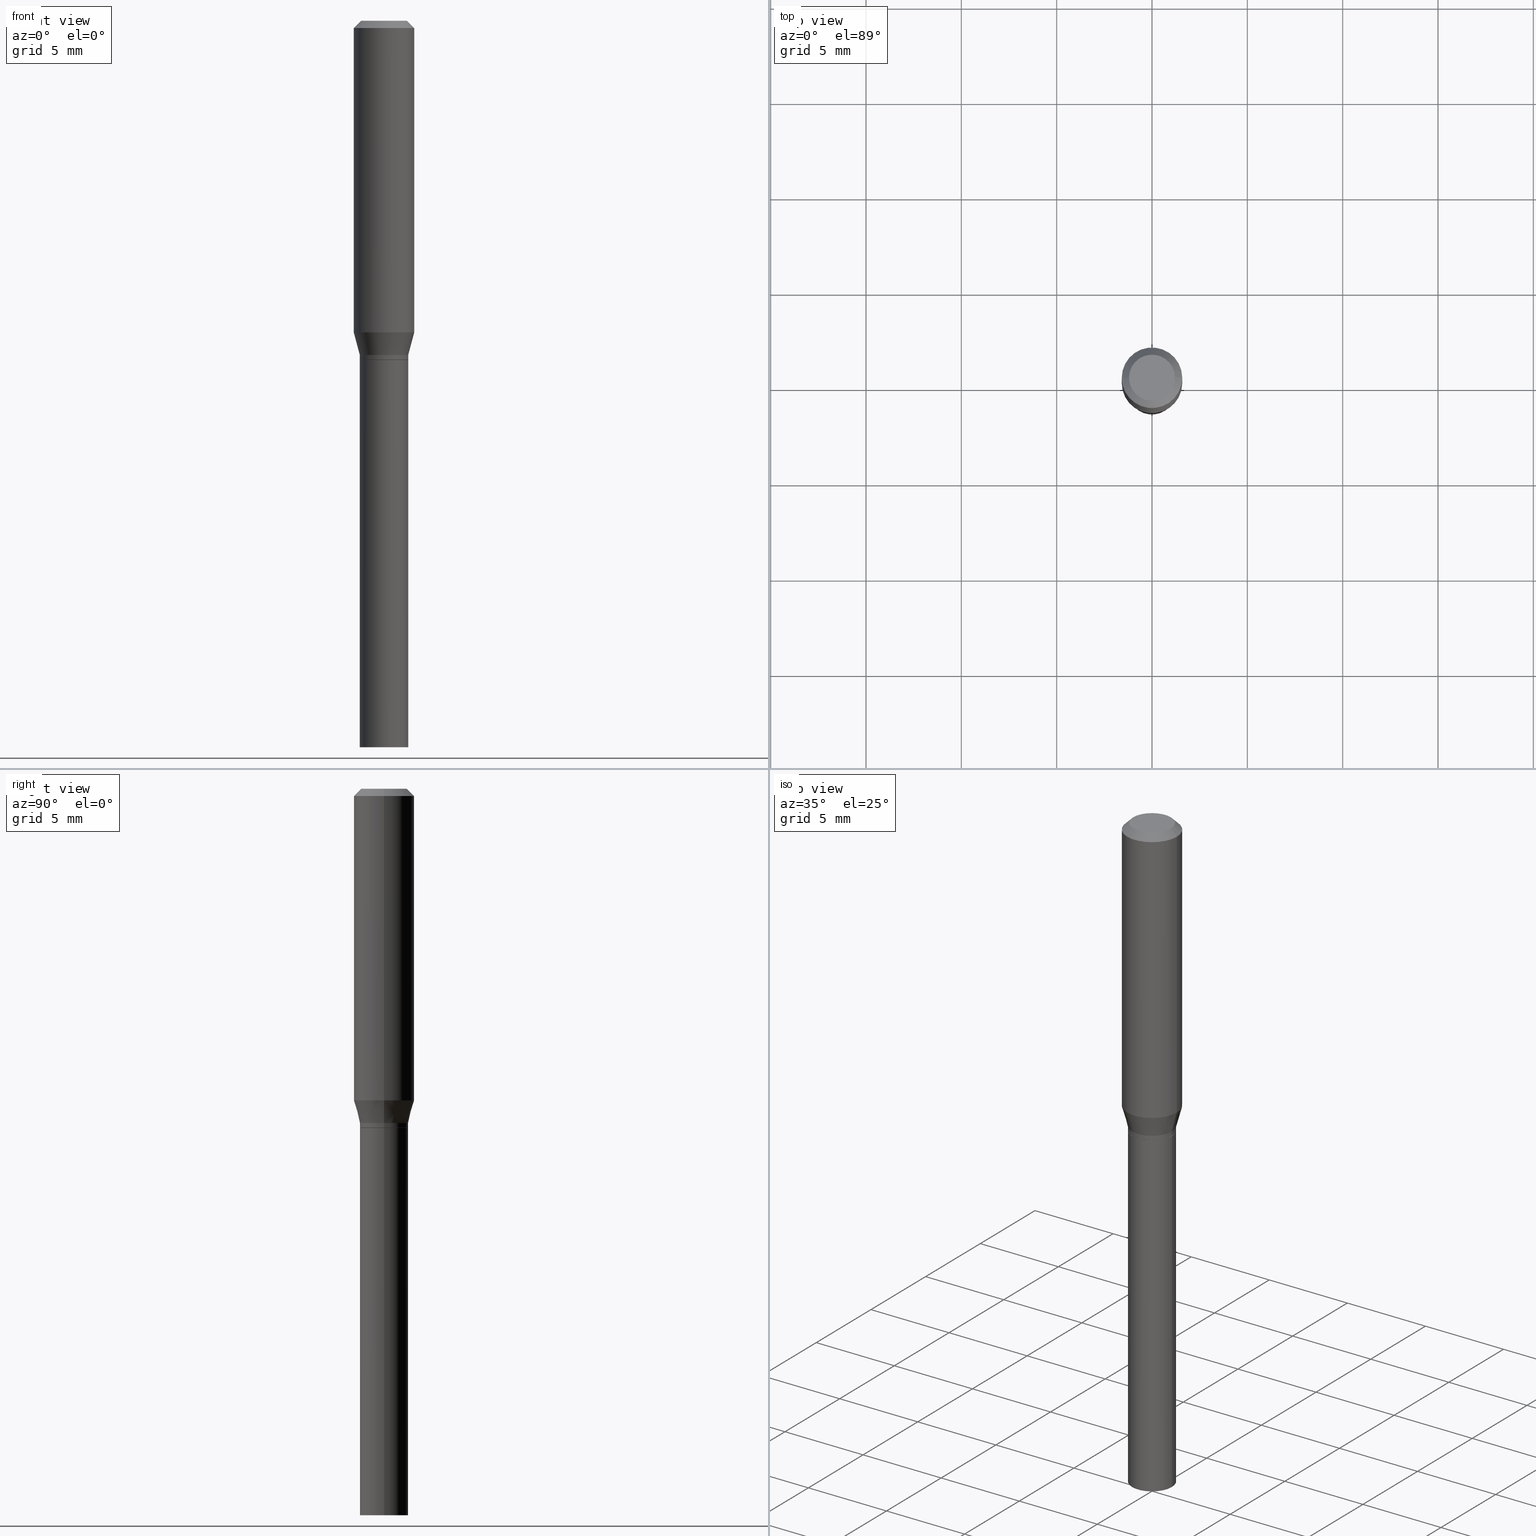
[diagram: canonical four-view strip — front | top / right | iso, engineering-drawing reading convention]
A machine part, canonical four-view strip (front | top / right | iso — engineering-drawing reading convention). The complete STEP part file that produces these views, byte-faithful:
ISO-10303-21;
HEADER;
FILE_DESCRIPTION (( 'STEP AP203' ),
    '1' );
FILE_NAME ('02690.STEP',
    '2024-03-18T21:24:07',
    ( '' ),
    ( '' ),
    'SwSTEP 2.0',
    'SolidWorks 2023',
    '' );
FILE_SCHEMA (( 'CONFIG_CONTROL_DESIGN' ));
ENDSEC;

DATA;
#1 = PERSON_AND_ORGANIZATION_ROLE ( 'creator' ) ;
#2 = DIRECTION ( 'NONE',  ( 1.000000000000000000, -6.982962677686266711E-15, 4.876176775795935793E-29 ) ) ;
#3 = LOCAL_TIME ( 17, 24, 7.000000000000000000, #213 ) ;
#4 = DIRECTION ( 'NONE',  ( -2.445468806185136597E-29, 3.491481338843145583E-15, 1.000000000000000000 ) ) ;
#5 = CARTESIAN_POINT ( 'NONE',  ( 0.05000000000000000278, -5.586370142149032301E-15, -1.500000000000000222 ) ) ;
#6 = CARTESIAN_POINT ( 'NONE',  ( -0.05000000000000000278, -3.485358104847410087E-15, -0.7000000000000000666 ) ) ;
#7 = AXIS2_PLACEMENT_3D ( 'NONE', #461, #146, #363 ) ;
#8 = DIRECTION ( 'NONE',  ( -2.445468806185136597E-29, 3.491481338843145583E-15, 1.000000000000000000 ) ) ;
#9 = CC_DESIGN_APPROVAL ( #114, ( #454 ) ) ;
#10 = ORIENTED_EDGE ( 'NONE', *, *, #316, .T. ) ;
#11 = ADVANCED_FACE ( 'NONE', ( #129 ), #175, .T. ) ;
#12 = LINE ( 'NONE', #155, #207 ) ;
#13 = DIRECTION ( 'NONE',  ( -0.7071067811865454633, 2.468850131082235761E-15, -0.7071067811865493491 ) ) ;
#14 = DIRECTION ( 'NONE',  ( -1.000000000000000000, 6.982962677686265922E-15, -4.876176775795935793E-29 ) ) ;
#15 = AXIS2_PLACEMENT_3D ( 'NONE', #46, #8, #408 ) ;
#16 = EDGE_CURVE ( 'NONE', #233, #166, #140, .T. ) ;
#17 = CIRCLE ( 'NONE', #370, 0.05000000000000004441 ) ;
#18 = CARTESIAN_POINT ( 'NONE',  ( 0.000000000000000000, 0.000000000000000000, 0.000000000000000000 ) ) ;
#19 = VERTEX_POINT ( 'NONE', #177 ) ;
#20 = EDGE_LOOP ( 'NONE', ( #379, #341, #60, #448 ) ) ;
#21 = ORIENTED_EDGE ( 'NONE', *, *, #187, .T. ) ;
#22 = ADVANCED_FACE ( 'NONE', ( #69 ), #466, .T. ) ;
#23 = LINE ( 'NONE', #342, #54 ) ;
#24 = VERTEX_POINT ( 'NONE', #315 ) ;
#25 = DATE_TIME_ROLE ( 'classification_date' ) ;
#26 = EDGE_LOOP ( 'NONE', ( #439, #150 ) ) ;
#27 = PERSON_AND_ORGANIZATION_ROLE ( 'classification_officer' ) ;
#28 = CARTESIAN_POINT ( 'NONE',  ( 0.000000000000000000, 0.000000000000000000, 0.000000000000000000 ) ) ;
#29 = CC_DESIGN_PERSON_AND_ORGANIZATION_ASSIGNMENT ( #249, #65, ( #454 ) ) ;
#30 = CIRCLE ( 'NONE', #295, 0.06250000000000000000 ) ;
#31 = AXIS2_PLACEMENT_3D ( 'NONE', #206, #340, #421 ) ;
#32 = DIRECTION ( 'NONE',  ( -2.445468806185136597E-29, 3.491481338843145583E-15, 1.000000000000000000 ) ) ;
#33 = DATE_AND_TIME ( #173, #151 ) ;
#34 = LINE ( 'NONE', #354, #443 ) ;
#35 = APPLICATION_CONTEXT ( 'configuration controlled 3d designs of mechanical parts and assemblies' ) ;
#36 = CARTESIAN_POINT ( 'NONE',  ( 3.668203209277704895E-29, -5.237222008264718177E-15, -1.500000000000000222 ) ) ;
#37 = VECTOR ( 'NONE', #319, 39.37007874015748143 ) ;
#38 = VECTOR ( 'NONE', #13, 39.37007874015748854 ) ;
#39 = ADVANCED_FACE ( 'NONE', ( #430 ), #308, .T. ) ;
#40 = CONICAL_SURFACE ( 'NONE', #137, 0.05000000000000004441, 0.2617993877991502960 ) ;
#41 = CARTESIAN_POINT ( 'NONE',  ( 0.05000000000000005829, -3.491481338843137300E-16, 2.438088387897970349E-30 ) ) ;
#42 = CARTESIAN_POINT ( 'NONE',  ( 1.573290803355148401E-29, -2.246242301923756407E-15, -0.6433493649053894092 ) ) ;
#43 = CARTESIAN_POINT ( 'NONE',  ( 1.687373476267744297E-29, -2.409122123801770771E-15, -0.6900000000000000577 ) ) ;
#44 = ORIENTED_EDGE ( 'NONE', *, *, #406, .T. ) ;
#45 = EDGE_CURVE ( 'NONE', #276, #233, #107, .T. ) ;
#46 = CARTESIAN_POINT ( 'NONE',  ( 1.711828164329595562E-29, -2.444036937190202026E-15, -0.7000000000000000666 ) ) ;
#47 = CONICAL_SURFACE ( 'NONE', #158, 0.06250000000000000000, 0.7853981633974456145 ) ;
#48 = ORIENTED_EDGE ( 'NONE', *, *, #134, .F. ) ;
#49 = DIRECTION ( 'NONE',  ( -2.445468806185136877E-29, 3.491481338843145188E-15, 1.000000000000000000 ) ) ;
#50 = VERTEX_POINT ( 'NONE', #359 ) ;
#51 = EDGE_CURVE ( 'NONE', #24, #156, #325, .T. ) ;
#52 = PLANE ( 'NONE',  #289 ) ;
#53 = DIRECTION ( 'NONE',  ( -2.445468806185136877E-29, 3.491481338843145188E-15, 1.000000000000000000 ) ) ;
#54 = VECTOR ( 'NONE', #381, 39.37007874015748143 ) ;
#55 = ORIENTED_EDGE ( 'NONE', *, *, #337, .T. ) ;
#56 = UNCERTAINTY_MEASURE_WITH_UNIT (LENGTH_MEASURE( 1.000000000000000082E-05 ), #236, 'distance_accuracy_value', 'NONE');
#57 = DIRECTION ( 'NONE',  ( 1.000000000000000000, -6.982962677686267499E-15, 4.876176775795936353E-29 ) ) ;
#58 = EDGE_LOOP ( 'NONE', ( #420, #265, #66, #343 ) ) ;
#59 = CYLINDRICAL_SURFACE ( 'NONE', #31, 0.06250000000000000000 ) ;
#60 = ORIENTED_EDGE ( 'NONE', *, *, #76, .T. ) ;
#61 = EDGE_CURVE ( 'NONE', #50, #384, #392, .T. ) ;
#62 = CARTESIAN_POINT ( 'NONE',  ( 0.04749999999999999362, -4.035134999187576651E-16, 8.618106228654135916E-17 ) ) ;
#63 = ORIENTED_EDGE ( 'NONE', *, *, #68, .T. ) ;
#64 = APPROVAL_PERSON_ORGANIZATION ( #211, #114, #358 ) ;
#65 = PERSON_AND_ORGANIZATION_ROLE ( 'design_supplier' ) ;
#66 = ORIENTED_EDGE ( 'NONE', *, *, #148, .T. ) ;
#67 = PERSON_AND_ORGANIZATION ( #104, #407 ) ;
#68 = EDGE_CURVE ( 'NONE', #376, #126, #157, .T. ) ;
#69 = FACE_OUTER_BOUND ( 'NONE', #121, .T. ) ;
#70 = FACE_OUTER_BOUND ( 'NONE', #203, .T. ) ;
#71 = CIRCLE ( 'NONE', #302, 0.06250000000000000000 ) ;
#72 = APPROVAL_PERSON_ORGANIZATION ( #353, #465, #135 ) ;
#73 = DIRECTION ( 'NONE',  ( -1.000000000000000000, 6.982962677686265922E-15, -4.876176775795935793E-29 ) ) ;
#74 = PERSON_AND_ORGANIZATION ( #104, #407 ) ;
#75 = CARTESIAN_POINT ( 'NONE',  ( 0.04950000000000000233, -2.789693589735671960E-15, -0.7000000000000000666 ) ) ;
#76 = EDGE_CURVE ( 'NONE', #352, #50, #427, .T. ) ;
#77 = DIRECTION ( 'NONE',  ( 1.000000000000000000, -6.982962677686264344E-15, 0.000000000000000000 ) ) ;
#78 = LINE ( 'NONE', #195, #97 ) ;
#79 = CARTESIAN_POINT ( 'NONE',  ( 0.06250000000000000000, -4.811533449433679005E-16, -0.01499999999999999944 ) ) ;
#80 = CC_DESIGN_PERSON_AND_ORGANIZATION_ASSIGNMENT ( #74, #138, ( #245 ) ) ;
#81 = ORIENTED_EDGE ( 'NONE', *, *, #344, .F. ) ;
#82 = CARTESIAN_POINT ( 'NONE',  ( 0.04950000000000000233, -2.789693589735671960E-15, -0.7000000000000000666 ) ) ;
#83 = AXIS2_PLACEMENT_3D ( 'NONE', #216, #4, #357 ) ;
#84 = DIRECTION ( 'NONE',  ( 1.000000000000000000, -6.982962677686265922E-15, 4.876176775795935793E-29 ) ) ;
#85 = DIRECTION ( 'NONE',  ( -2.438088387897960049E-29, 3.491481338843145188E-15, 1.000000000000000000 ) ) ;
#86 = EDGE_CURVE ( 'NONE', #410, #156, #30, .T. ) ;
#87 = ORIENTED_EDGE ( 'NONE', *, *, #86, .F. ) ;
#88 =( NAMED_UNIT ( * ) SI_UNIT ( $, .STERADIAN. ) SOLID_ANGLE_UNIT ( ) );
#89 = CIRCLE ( 'NONE', #217, 0.05000000000000006523 ) ;
#90 = ORIENTED_EDGE ( 'NONE', *, *, #51, .F. ) ;
#91 = EDGE_CURVE ( 'NONE', #166, #212, #385, .T. ) ;
#92 = VERTEX_POINT ( 'NONE', #428 ) ;
#93 = FACE_OUTER_BOUND ( 'NONE', #311, .T. ) ;
#94 = EDGE_LOOP ( 'NONE', ( #44, #422 ) ) ;
#95 = CYLINDRICAL_SURFACE ( 'NONE', #98, 0.05000000000000000278 ) ;
#96 = ORIENTED_EDGE ( 'NONE', *, *, #99, .T. ) ;
#97 = VECTOR ( 'NONE', #49, 39.37007874015748143 ) ;
#98 = AXIS2_PLACEMENT_3D ( 'NONE', #18, #246, #57 ) ;
#99 = EDGE_CURVE ( 'NONE', #193, #410, #34, .T. ) ;
#100 = COORDINATED_UNIVERSAL_TIME_OFFSET ( 5, 0, .BEHIND. ) ;
#101 = DIRECTION ( 'NONE',  ( -2.445468806185136597E-29, 3.491481338843145583E-15, 1.000000000000000000 ) ) ;
#102 = APPLICATION_PROTOCOL_DEFINITION ( 'international standard', 'config_control_design', 1994, #360 ) ;
#103 = DIRECTION ( 'NONE',  ( 1.000000000000000000, -6.982962677686266711E-15, 0.000000000000000000 ) ) ;
#104 = PERSON ( 'UNSPECIFIED', 'UNSPECIFIED', 'UNSPECIFIED', ('UNSPECIFIED'), ('UNSPECIFIED'), ('UNSPECIFIED') ) ;
#105 = APPROVAL_DATE_TIME ( #33, #114 ) ;
#106 = DIRECTION ( 'NONE',  ( -2.445468806185136877E-29, 3.491481338843145188E-15, 1.000000000000000000 ) ) ;
#107 = CIRCLE ( 'NONE', #168, 0.05000000000000000278 ) ;
#108 = AXIS2_PLACEMENT_3D ( 'NONE', #43, #192, #190 ) ;
#109 = CARTESIAN_POINT ( 'NONE',  ( 1.711828164329595562E-29, -2.444036937190202026E-15, -0.7000000000000000666 ) ) ;
#110 = EDGE_CURVE ( 'NONE', #92, #50, #89, .T. ) ;
#111 = DATE_TIME_ROLE ( 'creation_date' ) ;
#112 = FACE_OUTER_BOUND ( 'NONE', #94, .T. ) ;
#113 = DIRECTION ( 'NONE',  ( -2.445468806185136597E-29, 3.491481338843145583E-15, 1.000000000000000000 ) ) ;
#114 = APPROVAL ( #141, 'UNSPECIFIED' ) ;
#115 = AXIS2_PLACEMENT_3D ( 'NONE', #198, #447, #171 ) ;
#116 = FACE_OUTER_BOUND ( 'NONE', #196, .T. ) ;
#117 = EDGE_LOOP ( 'NONE', ( #229, #301, #10, #131 ) ) ;
#118 = CARTESIAN_POINT ( 'NONE',  ( 0.000000000000000000, 0.000000000000000000, 0.000000000000000000 ) ) ;
#119 = ORIENTED_EDGE ( 'NONE', *, *, #134, .T. ) ;
#120 = DIRECTION ( 'NONE',  ( 2.445468806185136597E-29, -3.491481338843145583E-15, -1.000000000000000000 ) ) ;
#121 = EDGE_LOOP ( 'NONE', ( #456, #382, #237, #205 ) ) ;
#122 = DIRECTION ( 'NONE',  ( -2.445468806185136597E-29, 3.491481338843145583E-15, 1.000000000000000000 ) ) ;
#123 = CC_DESIGN_SECURITY_CLASSIFICATION ( #272, ( #454 ) ) ;
#124 = ADVANCED_FACE ( 'NONE', ( #70 ), #322, .T. ) ;
#125 = ORIENTED_EDGE ( 'NONE', *, *, #269, .T. ) ;
#126 = VERTEX_POINT ( 'NONE', #253 ) ;
#127 = ADVANCED_FACE ( 'NONE', ( #112 ), #139, .F. ) ;
#128 = FACE_OUTER_BOUND ( 'NONE', #331, .T. ) ;
#129 = FACE_OUTER_BOUND ( 'NONE', #451, .T. ) ;
#130 =( NAMED_UNIT ( * ) PLANE_ANGLE_UNIT ( ) SI_UNIT ( $, .RADIAN. ) );
#131 = ORIENTED_EDGE ( 'NONE', *, *, #337, .F. ) ;
#132 = DIRECTION ( 'NONE',  ( -2.445468806185136597E-29, 3.491481338843145583E-15, 1.000000000000000000 ) ) ;
#133 = ORIENTED_EDGE ( 'NONE', *, *, #275, .F. ) ;
#134 = EDGE_CURVE ( 'NONE', #233, #276, #415, .T. ) ;
#135 = APPROVAL_ROLE ( '' ) ;
#136 = CARTESIAN_POINT ( 'NONE',  ( -2.107530995056288845E-45, 3.008995707351289501E-31, 8.618106228653878303E-17 ) ) ;
#137 = AXIS2_PLACEMENT_3D ( 'NONE', #200, #383, #240 ) ;
#138 = PERSON_AND_ORGANIZATION_ROLE ( 'creator' ) ;
#139 = PLANE ( 'NONE',  #444 ) ;
#140 = LINE ( 'NONE', #395, #453 ) ;
#141 = APPROVAL_STATUS ( 'not_yet_approved' ) ;
#142 = CC_DESIGN_DATE_AND_TIME_ASSIGNMENT ( #321, #111, ( #245 ) ) ;
#143 = DIRECTION ( 'NONE',  ( -2.445468806185136597E-29, 3.491481338843145583E-15, 1.000000000000000000 ) ) ;
#144 = ADVANCED_BREP_SHAPE_REPRESENTATION ( '02690', ( #197, #350, #191 ), #346 ) ;
#145 = AXIS2_PLACEMENT_3D ( 'NONE', #36, #362, #183 ) ;
#146 = DIRECTION ( 'NONE',  ( -2.445468806185136597E-29, 3.491481338843145583E-15, 1.000000000000000000 ) ) ;
#147 = DIRECTION ( 'NONE',  ( -1.000000000000000000, 6.982962677686266711E-15, 0.000000000000000000 ) ) ;
#148 = EDGE_CURVE ( 'NONE', #156, #410, #71, .T. ) ;
#149 = DIRECTION ( 'NONE',  ( -0.7071067811865656694, 7.493145998870420424E-15, 0.7071067811865294761 ) ) ;
#150 = ORIENTED_EDGE ( 'NONE', *, *, #164, .F. ) ;
#151 = LOCAL_TIME ( 17, 24, 7.000000000000000000, #426 ) ;
#152 = CYLINDRICAL_SURFACE ( 'NONE', #318, 0.05000000000000005829 ) ;
#153 = EDGE_LOOP ( 'NONE', ( #403, #227, #273, #298 ) ) ;
#154 = DIRECTION ( 'NONE',  ( -2.438088387897960049E-29, 3.491481338843145188E-15, 1.000000000000000000 ) ) ;
#155 = CARTESIAN_POINT ( 'NONE',  ( -0.04950000000000000233, -2.092318282988952122E-15, -0.7000000000000000666 ) ) ;
#156 = VERTEX_POINT ( 'NONE', #432 ) ;
#157 = CIRCLE ( 'NONE', #398, 0.04749999999999999362 ) ;
#158 = AXIS2_PLACEMENT_3D ( 'NONE', #228, #120, #147 ) ;
#159 = DIRECTION ( 'NONE',  ( 1.000000000000000000, -6.982962677686268288E-15, 0.000000000000000000 ) ) ;
#160 = PRODUCT_DEFINITION_SHAPE ( 'NONE', 'NONE',  #245 ) ;
#161 = DIRECTION ( 'NONE',  ( 2.445468806185136597E-29, -3.491481338843145583E-15, -1.000000000000000000 ) ) ;
#162 = ORIENTED_EDGE ( 'NONE', *, *, #16, .F. ) ;
#163 = DESIGN_CONTEXT ( 'detailed design', #360, 'design' ) ;
#164 = EDGE_CURVE ( 'NONE', #278, #352, #355, .T. ) ;
#165 =( LENGTH_UNIT ( ) NAMED_UNIT ( * ) SI_UNIT ( $, .METRE. ) );
#166 = VERTEX_POINT ( 'NONE', #6 ) ;
#167 = CARTESIAN_POINT ( 'NONE',  ( 0.000000000000000000, 0.000000000000000000, 0.000000000000000000 ) ) ;
#168 = AXIS2_PLACEMENT_3D ( 'NONE', #252, #101, #320 ) ;
#169 = CIRCLE ( 'NONE', #179, 0.06250000000000000000 ) ;
#170 = ORIENTED_EDGE ( 'NONE', *, *, #174, .F. ) ;
#171 = DIRECTION ( 'NONE',  ( 1.000000000000000000, -6.982962677686265133E-15, 0.000000000000000000 ) ) ;
#172 = ORIENTED_EDGE ( 'NONE', *, *, #91, .F. ) ;
#173 = CALENDAR_DATE ( 2024, 18, 3 ) ;
#174 = EDGE_CURVE ( 'NONE', #376, #156, #300, .T. ) ;
#175 = CYLINDRICAL_SURFACE ( 'NONE', #393, 0.05000000000000005829 ) ;
#176 = SHAPE_DEFINITION_REPRESENTATION ( #160, #144 ) ;
#177 = CARTESIAN_POINT ( 'NONE',  ( -0.05000000000000004441, -1.928001923997707077E-15, -0.6900000000000000577 ) ) ;
#178 = AXIS2_PLACEMENT_3D ( 'NONE', #109, #396, #77 ) ;
#179 = AXIS2_PLACEMENT_3D ( 'NONE', #42, #402, #371 ) ;
#180 = DIRECTION ( 'NONE',  ( 2.438088387897960049E-29, -3.491481338843145188E-15, -1.000000000000000000 ) ) ;
#181 = CC_DESIGN_PERSON_AND_ORGANIZATION_ASSIGNMENT ( #387, #1, ( #454 ) ) ;
#182 = COORDINATED_UNIVERSAL_TIME_OFFSET ( 5, 0, .BEHIND. ) ;
#183 = DIRECTION ( 'NONE',  ( 1.000000000000000000, -6.982962677686274599E-15, 0.000000000000000000 ) ) ;
#184 = DIRECTION ( 'NONE',  ( 1.000000000000000000, -6.982962677686267499E-15, 4.876176775795936353E-29 ) ) ;
#185 = AXIS2_PLACEMENT_3D ( 'NONE', #28, #283, #2 ) ;
#186 = DIRECTION ( 'NONE',  ( 0.2588190451025215721, 1.565188264969619995E-15, 0.9659258262890679791 ) ) ;
#187 = EDGE_CURVE ( 'NONE', #278, #92, #12, .T. ) ;
#188 = CARTESIAN_POINT ( 'NONE',  ( -2.107530995056288845E-45, 3.008995707351289501E-31, 8.618106228653878303E-17 ) ) ;
#189 = ORIENTED_EDGE ( 'NONE', *, *, #378, .F. ) ;
#190 = DIRECTION ( 'NONE',  ( 1.000000000000000000, -6.982962677686268288E-15, 0.000000000000000000 ) ) ;
#191 = AXIS2_PLACEMENT_3D ( 'NONE', #167, #274, #290 ) ;
#192 = DIRECTION ( 'NONE',  ( -2.445468806185136597E-29, 3.491481338843145583E-15, 1.000000000000000000 ) ) ;
#193 = VERTEX_POINT ( 'NONE', #374 ) ;
#194 = ADVANCED_FACE ( 'NONE', ( #440 ), #424, .T. ) ;
#195 = CARTESIAN_POINT ( 'NONE',  ( 0.05000000000000000278, -3.491481338843133848E-16, 2.438088387897968247E-30 ) ) ;
#196 = EDGE_LOOP ( 'NONE', ( #388, #48 ) ) ;
#197 = MANIFOLD_SOLID_BREP ( 'Body-Move/Copy2[1]', #238 ) ;
#198 = CARTESIAN_POINT ( 'NONE',  ( 1.710605429926503040E-29, -2.442291196520780523E-15, -0.6995000000000000107 ) ) ;
#199 = ORIENTED_EDGE ( 'NONE', *, *, #378, .T. ) ;
#200 = CARTESIAN_POINT ( 'NONE',  ( 1.687373476267744297E-29, -2.409122123801770771E-15, -0.6900000000000000577 ) ) ;
#201 = APPROVAL ( #317, 'UNSPECIFIED' ) ;
#202 = ORIENTED_EDGE ( 'NONE', *, *, #110, .T. ) ;
#203 = EDGE_LOOP ( 'NONE', ( #270, #55, #445, #87 ) ) ;
#204 = APPLICATION_PROTOCOL_DEFINITION ( 'international standard', 'config_control_design', 1994, #35 ) ;
#205 = ORIENTED_EDGE ( 'NONE', *, *, #210, .F. ) ;
#206 = CARTESIAN_POINT ( 'NONE',  ( 0.000000000000000000, 0.000000000000000000, 0.000000000000000000 ) ) ;
#207 = VECTOR ( 'NONE', #149, 39.37007874015748143 ) ;
#208 = LOCAL_TIME ( 17, 24, 7.000000000000000000, #182 ) ;
#209 = EDGE_LOOP ( 'NONE', ( #170, #81, #452, #459 ) ) ;
#210 = EDGE_CURVE ( 'NONE', #276, #212, #78, .T. ) ;
#211 = PERSON_AND_ORGANIZATION ( #104, #407 ) ;
#212 = VERTEX_POINT ( 'NONE', #327 ) ;
#213 = COORDINATED_UNIVERSAL_TIME_OFFSET ( 5, 0, .BEHIND. ) ;
#214 = DIRECTION ( 'NONE',  ( -2.445468806185136597E-29, 3.491481338843145583E-15, 1.000000000000000000 ) ) ;
#215 = DATE_AND_TIME ( #361, #208 ) ;
#216 = CARTESIAN_POINT ( 'NONE',  ( 1.711828164329595562E-29, -2.444036937190202026E-15, -0.7000000000000000666 ) ) ;
#217 = AXIS2_PLACEMENT_3D ( 'NONE', #222, #32, #257 ) ;
#218 = CIRCLE ( 'NONE', #108, 0.05000000000000004441 ) ;
#219 = APPROVAL_ROLE ( '' ) ;
#220 = DIRECTION ( 'NONE',  ( -2.445468806185136877E-29, 3.491481338843145188E-15, 1.000000000000000000 ) ) ;
#221 = COORDINATED_UNIVERSAL_TIME_OFFSET ( 5, 0, .BEHIND. ) ;
#222 = CARTESIAN_POINT ( 'NONE',  ( 1.710605429926503040E-29, -2.442291196520780523E-15, -0.6995000000000000107 ) ) ;
#223 = ADVANCED_FACE ( 'NONE', ( #437 ), #330, .F. ) ;
#224 = CARTESIAN_POINT ( 'NONE',  ( 0.000000000000000000, 0.000000000000000000, 0.000000000000000000 ) ) ;
#225 = CIRCLE ( 'NONE', #261, 0.06250000000000000000 ) ;
#226 = FACE_OUTER_BOUND ( 'NONE', #209, .T. ) ;
#227 = ORIENTED_EDGE ( 'NONE', *, *, #373, .T. ) ;
#228 = CARTESIAN_POINT ( 'NONE',  ( 3.668203209277705088E-31, -5.237222008264718399E-17, -0.01499999999999999944 ) ) ;
#229 = ORIENTED_EDGE ( 'NONE', *, *, #373, .F. ) ;
#230 = CARTESIAN_POINT ( 'NONE',  ( -0.06250000000000000000, 3.840629472727444916E-16, -0.01499999999999999944 ) ) ;
#231 = CONICAL_SURFACE ( 'NONE', #386, 0.05000000000000004441, 0.2617993877991502960 ) ;
#232 = PLANE ( 'NONE',  #462 ) ;
#233 = VERTEX_POINT ( 'NONE', #399 ) ;
#234 = DIRECTION ( 'NONE',  ( 1.000000000000000000, -6.982962677686262766E-15, 0.000000000000000000 ) ) ;
#235 = ADVANCED_FACE ( 'NONE', ( #116 ), #232, .F. ) ;
#236 =( CONVERSION_BASED_UNIT ( 'INCH', #304 ) LENGTH_UNIT ( ) NAMED_UNIT ( #380 ) );
#237 = ORIENTED_EDGE ( 'NONE', *, *, #406, .F. ) ;
#238 = CLOSED_SHELL ( 'NONE', ( #22, #235, #435, #127 ) ) ;
#239 = AXIS2_PLACEMENT_3D ( 'NONE', #417, #161, #419 ) ;
#240 = DIRECTION ( 'NONE',  ( 1.000000000000000000, -6.982962677686268288E-15, 0.000000000000000000 ) ) ;
#241 = ORIENTED_EDGE ( 'NONE', *, *, #292, .T. ) ;
#242 = DIRECTION ( 'NONE',  ( -2.445468806185136597E-29, 3.491481338843145583E-15, 1.000000000000000000 ) ) ;
#243 = DIRECTION ( 'NONE',  ( -2.445468806185136597E-29, 3.491481338843145583E-15, 1.000000000000000000 ) ) ;
#244 = ORIENTED_EDGE ( 'NONE', *, *, #251, .F. ) ;
#245 = PRODUCT_DEFINITION ( 'UNKNOWN', '', #454, #163 ) ;
#246 = DIRECTION ( 'NONE',  ( -2.445468806185136597E-29, 3.491481338843145583E-15, 1.000000000000000000 ) ) ;
#247 = AXIS2_PLACEMENT_3D ( 'NONE', #188, #328, #297 ) ;
#248 = ORIENTED_EDGE ( 'NONE', *, *, #61, .T. ) ;
#249 = PERSON_AND_ORGANIZATION ( #104, #407 ) ;
#250 = CARTESIAN_POINT ( 'NONE',  ( 0.06250000000000000000, -4.364351673553916694E-16, 3.047610484872459871E-30 ) ) ;
#251 = EDGE_CURVE ( 'NONE', #384, #19, #17, .T. ) ;
#252 = CARTESIAN_POINT ( 'NONE',  ( 3.668203209277704895E-29, -5.237222008264718177E-15, -1.500000000000000222 ) ) ;
#253 = CARTESIAN_POINT ( 'NONE',  ( -0.04749999999999999362, 3.578768372314211985E-16, 8.618106228653636715E-17 ) ) ;
#254 = AXIS2_PLACEMENT_3D ( 'NONE', #224, #464, #184 ) ;
#255 = CIRCLE ( 'NONE', #247, 0.04749999999999999362 ) ;
#256 = DATE_AND_TIME ( #431, #267 ) ;
#257 = DIRECTION ( 'NONE',  ( 1.000000000000000000, -6.982962677686265133E-15, 0.000000000000000000 ) ) ;
#258 = CARTESIAN_POINT ( 'NONE',  ( 3.668203209277705088E-31, -5.237222008264718399E-17, -0.01499999999999999944 ) ) ;
#259 = DIRECTION ( 'NONE',  ( -2.445468806185136597E-29, 3.491481338843145583E-15, 1.000000000000000000 ) ) ;
#260 = CLOSED_SHELL ( 'NONE', ( #324, #194, #365, #412, #397, #423, #124, #264, #449, #223, #39, #11 ) ) ;
#261 = AXIS2_PLACEMENT_3D ( 'NONE', #293, #113, #234 ) ;
#262 = CARTESIAN_POINT ( 'NONE',  ( 3.576687321579069994E-29, -5.368277968210015545E-15, -1.500000000000000222 ) ) ;
#263 = LINE ( 'NONE', #230, #38 ) ;
#264 = ADVANCED_FACE ( 'NONE', ( #226 ), #47, .T. ) ;
#265 = ORIENTED_EDGE ( 'NONE', *, *, #174, .T. ) ;
#266 = FACE_OUTER_BOUND ( 'NONE', #369, .T. ) ;
#267 = LOCAL_TIME ( 17, 24, 7.000000000000000000, #221 ) ;
#268 = CARTESIAN_POINT ( 'NONE',  ( 1.711828164329595562E-29, -2.444036937190202026E-15, -0.7000000000000000666 ) ) ;
#269 = EDGE_CURVE ( 'NONE', #352, #278, #416, .T. ) ;
#270 = ORIENTED_EDGE ( 'NONE', *, *, #99, .F. ) ;
#271 = ORIENTED_EDGE ( 'NONE', *, *, #210, .T. ) ;
#272 = SECURITY_CLASSIFICATION ( '', '', #286 ) ;
#273 = ORIENTED_EDGE ( 'NONE', *, *, #292, .F. ) ;
#274 = DIRECTION ( 'NONE',  ( 0.000000000000000000, 0.000000000000000000, 1.000000000000000000 ) ) ;
#275 = EDGE_CURVE ( 'NONE', #19, #384, #218, .T. ) ;
#276 = VERTEX_POINT ( 'NONE', #5 ) ;
#277 = CARTESIAN_POINT ( 'NONE',  ( 1.687373476267744297E-29, -2.409122123801770771E-15, -0.6900000000000000577 ) ) ;
#278 = VERTEX_POINT ( 'NONE', #335 ) ;
#279 = CALENDAR_DATE ( 2024, 18, 3 ) ;
#280 = CIRCLE ( 'NONE', #115, 0.05000000000000006523 ) ;
#281 = DIRECTION ( 'NONE',  ( -2.445468806185136877E-29, 3.491481338843145188E-15, 1.000000000000000000 ) ) ;
#282 = CC_DESIGN_PERSON_AND_ORGANIZATION_ASSIGNMENT ( #349, #389, ( #411 ) ) ;
#283 = DIRECTION ( 'NONE',  ( -2.445468806185136597E-29, 3.491481338843145583E-15, 1.000000000000000000 ) ) ;
#284 = APPROVAL_DATE_TIME ( #215, #201 ) ;
#285 = CARTESIAN_POINT ( 'NONE',  ( 3.668203209277705088E-31, -5.237222008264718399E-17, -0.01499999999999999944 ) ) ;
#286 = SECURITY_CLASSIFICATION_LEVEL ( 'unclassified' ) ;
#287 = DIRECTION ( 'NONE',  ( 1.000000000000000000, -6.982962677686266711E-15, 0.000000000000000000 ) ) ;
#288 = VECTOR ( 'NONE', #434, 39.37007874015748143 ) ;
#289 = AXIS2_PLACEMENT_3D ( 'NONE', #455, #413, #14 ) ;
#290 = DIRECTION ( 'NONE',  ( 1.000000000000000000, 0.000000000000000000, 0.000000000000000000 ) ) ;
#291 = DIRECTION ( 'NONE',  ( 1.000000000000000000, -6.982962677686267499E-15, 4.884662768193073002E-29 ) ) ;
#292 = EDGE_CURVE ( 'NONE', #24, #193, #225, .T. ) ;
#293 = CARTESIAN_POINT ( 'NONE',  ( 1.573290803355148401E-29, -2.246242301923756407E-15, -0.6433493649053894092 ) ) ;
#294 = DIRECTION ( 'NONE',  ( 0.7071067811865454633, -7.319954787623246579E-15, -0.7071067811865493491 ) ) ;
#295 = AXIS2_PLACEMENT_3D ( 'NONE', #285, #214, #103 ) ;
#296 = PRODUCT_RELATED_PRODUCT_CATEGORY ( 'detail', '', ( #411 ) ) ;
#297 = DIRECTION ( 'NONE',  ( 1.000000000000000000, -6.982962677686267499E-15, 4.884662768193073002E-29 ) ) ;
#298 = ORIENTED_EDGE ( 'NONE', *, *, #316, .F. ) ;
#299 = DIRECTION ( 'NONE',  ( 1.000000000000000000, -6.982962677686268288E-15, 0.000000000000000000 ) ) ;
#300 = LINE ( 'NONE', #79, #405 ) ;
#301 = ORIENTED_EDGE ( 'NONE', *, *, #275, .T. ) ;
#302 = AXIS2_PLACEMENT_3D ( 'NONE', #258, #143, #287 ) ;
#303 = CIRCLE ( 'NONE', #309, 0.05000000000000000278 ) ;
#304 = LENGTH_MEASURE_WITH_UNIT ( LENGTH_MEASURE( 0.02539999999999999897 ), #165 );
#305 = FACE_OUTER_BOUND ( 'NONE', #153, .T. ) ;
#306 = ORIENTED_EDGE ( 'NONE', *, *, #76, .F. ) ;
#307 = ORIENTED_EDGE ( 'NONE', *, *, #344, .T. ) ;
#308 = CONICAL_SURFACE ( 'NONE', #7, 0.04950000000000000233, 0.7853981633974739252 ) ;
#309 = AXIS2_PLACEMENT_3D ( 'NONE', #457, #132, #310 ) ;
#310 = DIRECTION ( 'NONE',  ( 1.000000000000000000, -6.982962677686264344E-15, 0.000000000000000000 ) ) ;
#311 = EDGE_LOOP ( 'NONE', ( #241, #96, #348, #90 ) ) ;
#312 = CARTESIAN_POINT ( 'NONE',  ( 0.05000000000000004441, -2.758270257686084501E-15, -0.6900000000000000577 ) ) ;
#313 = EDGE_LOOP ( 'NONE', ( #125, #21, #189, #306 ) ) ;
#314 = PERSON_AND_ORGANIZATION ( #104, #407 ) ;
#315 = CARTESIAN_POINT ( 'NONE',  ( 0.06250000000000000000, -2.682677469279148077E-15, -0.6433493649053894092 ) ) ;
#316 = EDGE_CURVE ( 'NONE', #384, #24, #436, .T. ) ;
#317 = APPROVAL_STATUS ( 'not_yet_approved' ) ;
#318 = AXIS2_PLACEMENT_3D ( 'NONE', #118, #259, #364 ) ;
#319 = DIRECTION ( 'NONE',  ( -2.445468806185136877E-29, 3.491481338843145188E-15, 1.000000000000000000 ) ) ;
#320 = DIRECTION ( 'NONE',  ( 1.000000000000000000, -6.982962677686274599E-15, 0.000000000000000000 ) ) ;
#321 = DATE_AND_TIME ( #391, #356 ) ;
#322 = CYLINDRICAL_SURFACE ( 'NONE', #185, 0.06250000000000000000 ) ;
#323 = APPROVAL_DATE_TIME ( #256, #465 ) ;
#324 = ADVANCED_FACE ( 'NONE', ( #266 ), #152, .T. ) ;
#325 = LINE ( 'NONE', #250, #37 ) ;
#326 = CONICAL_SURFACE ( 'NONE', #239, 0.06250000000000000000, 0.7853981633974456145 ) ;
#327 = CARTESIAN_POINT ( 'NONE',  ( 0.05000000000000000278, -2.793185071074515362E-15, -0.7000000000000000666 ) ) ;
#328 = DIRECTION ( 'NONE',  ( -2.445468806185136597E-29, 3.491481338843145583E-15, 1.000000000000000000 ) ) ;
#329 = CC_DESIGN_DATE_AND_TIME_ASSIGNMENT ( #463, #25, ( #272 ) ) ;
#330 = PLANE ( 'NONE',  #338 ) ;
#331 = EDGE_LOOP ( 'NONE', ( #162, #119, #271, #172 ) ) ;
#332 = CC_DESIGN_APPROVAL ( #465, ( #272 ) ) ;
#333 = CARTESIAN_POINT ( 'NONE',  ( 0.05000000000000004441, -2.758270257686084501E-15, -0.6900000000000000577 ) ) ;
#334 = EDGE_LOOP ( 'NONE', ( #307, #63 ) ) ;
#335 = CARTESIAN_POINT ( 'NONE',  ( -0.04950000000000000233, -2.089669055814840921E-15, -0.7000000000000000666 ) ) ;
#336 = CARTESIAN_POINT ( 'NONE',  ( -0.06250000000000000000, -7.052180511531390284E-16, -0.01499999999999999944 ) ) ;
#337 = EDGE_CURVE ( 'NONE', #193, #24, #169, .T. ) ;
#338 = AXIS2_PLACEMENT_3D ( 'NONE', #404, #85, #84 ) ;
#339 = VECTOR ( 'NONE', #186, 39.37007874015748143 ) ;
#340 = DIRECTION ( 'NONE',  ( -2.445468806185136597E-29, 3.491481338843145583E-15, 1.000000000000000000 ) ) ;
#341 = ORIENTED_EDGE ( 'NONE', *, *, #164, .T. ) ;
#342 = CARTESIAN_POINT ( 'NONE',  ( -0.05000000000000004441, -2.053850755921720363E-15, -0.6900000000000000577 ) ) ;
#343 = ORIENTED_EDGE ( 'NONE', *, *, #351, .F. ) ;
#344 = EDGE_CURVE ( 'NONE', #126, #376, #255, .T. ) ;
#345 = DIRECTION ( 'NONE',  ( 1.000000000000000000, -6.982962677686266711E-15, 4.876176775795935232E-29 ) ) ;
#346 =( GEOMETRIC_REPRESENTATION_CONTEXT ( 3 ) GLOBAL_UNCERTAINTY_ASSIGNED_CONTEXT ( ( #56 ) ) GLOBAL_UNIT_ASSIGNED_CONTEXT ( ( #236, #130, #88 ) ) REPRESENTATION_CONTEXT ( 'NONE', 'WORKASPACE' ) );
#347 = FACE_OUTER_BOUND ( 'NONE', #117, .T. ) ;
#348 = ORIENTED_EDGE ( 'NONE', *, *, #148, .F. ) ;
#349 = PERSON_AND_ORGANIZATION ( #104, #407 ) ;
#350 = MANIFOLD_SOLID_BREP ( 'Body-Move/Copy2[2]', #260 ) ;
#351 = EDGE_CURVE ( 'NONE', #126, #410, #263, .T. ) ;
#352 = VERTEX_POINT ( 'NONE', #82 ) ;
#353 = PERSON_AND_ORGANIZATION ( #104, #407 ) ;
#354 = CARTESIAN_POINT ( 'NONE',  ( -0.06250000000000000000, 4.440892098500626162E-16, -3.074334431409316114E-30 ) ) ;
#355 = CIRCLE ( 'NONE', #178, 0.04950000000000000233 ) ;
#356 = LOCAL_TIME ( 17, 24, 7.000000000000000000, #100 ) ;
#357 = DIRECTION ( 'NONE',  ( 1.000000000000000000, -6.982962677686264344E-15, 0.000000000000000000 ) ) ;
#358 = APPROVAL_ROLE ( '' ) ;
#359 = CARTESIAN_POINT ( 'NONE',  ( 0.05000000000000006523, -2.791439330405093858E-15, -0.6995000000000000107 ) ) ;
#360 = APPLICATION_CONTEXT ( 'configuration controlled 3d designs of mechanical parts and assemblies' ) ;
#361 = CALENDAR_DATE ( 2024, 18, 3 ) ;
#362 = DIRECTION ( 'NONE',  ( -2.445468806185136597E-29, 3.491481338843145583E-15, 1.000000000000000000 ) ) ;
#363 = DIRECTION ( 'NONE',  ( 1.000000000000000000, -6.982962677686264344E-15, 0.000000000000000000 ) ) ;
#364 = DIRECTION ( 'NONE',  ( 1.000000000000000000, -6.982962677686266711E-15, 4.876176775795935232E-29 ) ) ;
#365 = ADVANCED_FACE ( 'NONE', ( #368 ), #326, .T. ) ;
#366 = ORIENTED_EDGE ( 'NONE', *, *, #429, .T. ) ;
#367 = DIRECTION ( 'NONE',  ( 1.000000000000000000, -6.982962677686264344E-15, 0.000000000000000000 ) ) ;
#368 = FACE_OUTER_BOUND ( 'NONE', #58, .T. ) ;
#369 = EDGE_LOOP ( 'NONE', ( #199, #366, #244, #414 ) ) ;
#370 = AXIS2_PLACEMENT_3D ( 'NONE', #442, #401, #299 ) ;
#371 = DIRECTION ( 'NONE',  ( 1.000000000000000000, -6.982962677686262766E-15, 0.000000000000000000 ) ) ;
#372 = ORIENTED_EDGE ( 'NONE', *, *, #429, .F. ) ;
#373 = EDGE_CURVE ( 'NONE', #19, #193, #23, .T. ) ;
#374 = CARTESIAN_POINT ( 'NONE',  ( -0.06250000000000000000, -1.802153092073694185E-15, -0.6433493649053894092 ) ) ;
#375 = FACE_OUTER_BOUND ( 'NONE', #334, .T. ) ;
#376 = VERTEX_POINT ( 'NONE', #62 ) ;
#377 = VECTOR ( 'NONE', #281, 39.37007874015748143 ) ;
#378 = EDGE_CURVE ( 'NONE', #50, #92, #280, .T. ) ;
#379 = ORIENTED_EDGE ( 'NONE', *, *, #187, .F. ) ;
#380 = DIMENSIONAL_EXPONENTS ( 1.000000000000000000, 0.000000000000000000, 0.000000000000000000, 0.000000000000000000, 0.000000000000000000, 0.000000000000000000, 0.000000000000000000 ) ;
#381 = DIRECTION ( 'NONE',  ( -0.2588190451025215721, 5.211531920934551831E-15, 0.9659258262890679791 ) ) ;
#382 = ORIENTED_EDGE ( 'NONE', *, *, #16, .T. ) ;
#383 = DIRECTION ( 'NONE',  ( -2.445468806185136597E-29, 3.491481338843145583E-15, 1.000000000000000000 ) ) ;
#384 = VERTEX_POINT ( 'NONE', #312 ) ;
#385 = CIRCLE ( 'NONE', #83, 0.05000000000000000278 ) ;
#386 = AXIS2_PLACEMENT_3D ( 'NONE', #277, #243, #159 ) ;
#387 = PERSON_AND_ORGANIZATION ( #104, #407 ) ;
#388 = ORIENTED_EDGE ( 'NONE', *, *, #45, .F. ) ;
#389 = PERSON_AND_ORGANIZATION_ROLE ( 'design_owner' ) ;
#390 = DIRECTION ( 'NONE',  ( -2.445468806185136597E-29, 3.491481338843145583E-15, 1.000000000000000000 ) ) ;
#391 = CALENDAR_DATE ( 2024, 18, 3 ) ;
#392 = LINE ( 'NONE', #41, #377 ) ;
#393 = AXIS2_PLACEMENT_3D ( 'NONE', #418, #242, #345 ) ;
#394 = CARTESIAN_POINT ( 'NONE',  ( 3.491481338843303946E-16, 0.04999999999999756028, -0.7000000000000001776 ) ) ;
#395 = CARTESIAN_POINT ( 'NONE',  ( -0.05000000000000000278, 3.552713678800501127E-16, -2.459467545127453311E-30 ) ) ;
#396 = DIRECTION ( 'NONE',  ( -2.445468806185136597E-29, 3.491481338843145583E-15, 1.000000000000000000 ) ) ;
#397 = ADVANCED_FACE ( 'NONE', ( #305 ), #40, .T. ) ;
#398 = AXIS2_PLACEMENT_3D ( 'NONE', #136, #390, #291 ) ;
#399 = CARTESIAN_POINT ( 'NONE',  ( -0.05000000000000000278, -3.485358104847410087E-15, -1.500000000000000222 ) ) ;
#400 = VECTOR ( 'NONE', #53, 39.37007874015748143 ) ;
#401 = DIRECTION ( 'NONE',  ( -2.445468806185136597E-29, 3.491481338843145583E-15, 1.000000000000000000 ) ) ;
#402 = DIRECTION ( 'NONE',  ( -2.445468806185136597E-29, 3.491481338843145583E-15, 1.000000000000000000 ) ) ;
#403 = ORIENTED_EDGE ( 'NONE', *, *, #251, .T. ) ;
#404 = CARTESIAN_POINT ( 'NONE',  ( 1.711828164329595562E-29, -2.444036937190202026E-15, -0.7000000000000000666 ) ) ;
#405 = VECTOR ( 'NONE', #294, 39.37007874015748854 ) ;
#406 = EDGE_CURVE ( 'NONE', #212, #166, #303, .T. ) ;
#407 = ORGANIZATION ( 'UNSPECIFIED', 'UNSPECIFIED', '' ) ;
#408 = DIRECTION ( 'NONE',  ( 1.000000000000000000, -6.982962677686264344E-15, 0.000000000000000000 ) ) ;
#409 = LINE ( 'NONE', #450, #400 ) ;
#410 = VERTEX_POINT ( 'NONE', #336 ) ;
#411 = PRODUCT ( '02690', '02690', '', ( #433 ) ) ;
#412 = ADVANCED_FACE ( 'NONE', ( #93 ), #59, .T. ) ;
#413 = DIRECTION ( 'NONE',  ( 2.438088387897960049E-29, -3.491481338843145188E-15, -1.000000000000000000 ) ) ;
#414 = ORIENTED_EDGE ( 'NONE', *, *, #61, .F. ) ;
#415 = CIRCLE ( 'NONE', #145, 0.05000000000000000278 ) ;
#416 = CIRCLE ( 'NONE', #425, 0.04950000000000000233 ) ;
#417 = CARTESIAN_POINT ( 'NONE',  ( 3.668203209277705088E-31, -5.237222008264718399E-17, -0.01499999999999999944 ) ) ;
#418 = CARTESIAN_POINT ( 'NONE',  ( 0.000000000000000000, 0.000000000000000000, 0.000000000000000000 ) ) ;
#419 = DIRECTION ( 'NONE',  ( -1.000000000000000000, 6.982962677686266711E-15, 0.000000000000000000 ) ) ;
#420 = ORIENTED_EDGE ( 'NONE', *, *, #68, .F. ) ;
#421 = DIRECTION ( 'NONE',  ( 1.000000000000000000, -6.982962677686266711E-15, 4.876176775795935793E-29 ) ) ;
#422 = ORIENTED_EDGE ( 'NONE', *, *, #91, .T. ) ;
#423 = ADVANCED_FACE ( 'NONE', ( #347 ), #231, .T. ) ;
#424 = CONICAL_SURFACE ( 'NONE', #15, 0.04950000000000000233, 0.7853981633974739252 ) ;
#425 = AXIS2_PLACEMENT_3D ( 'NONE', #268, #122, #367 ) ;
#426 = COORDINATED_UNIVERSAL_TIME_OFFSET ( 5, 0, .BEHIND. ) ;
#427 = LINE ( 'NONE', #75, #288 ) ;
#428 = CARTESIAN_POINT ( 'NONE',  ( -0.05000000000000006523, -2.087019828640729720E-15, -0.6995000000000000107 ) ) ;
#429 = EDGE_CURVE ( 'NONE', #92, #19, #409, .T. ) ;
#430 = FACE_OUTER_BOUND ( 'NONE', #20, .T. ) ;
#431 = CALENDAR_DATE ( 2024, 18, 3 ) ;
#432 = CARTESIAN_POINT ( 'NONE',  ( 0.06250000000000000000, -4.888073874380388472E-16, -0.01499999999999999944 ) ) ;
#433 = MECHANICAL_CONTEXT ( 'NONE', #35, 'mechanical' ) ;
#434 = DIRECTION ( 'NONE',  ( 0.7071067811865656694, -2.468850131082446387E-15, 0.7071067811865294761 ) ) ;
#435 = ADVANCED_FACE ( 'NONE', ( #128 ), #95, .T. ) ;
#436 = LINE ( 'NONE', #333, #339 ) ;
#437 = FACE_OUTER_BOUND ( 'NONE', #26, .T. ) ;
#438 = APPROVAL_PERSON_ORGANIZATION ( #314, #201, #219 ) ;
#439 = ORIENTED_EDGE ( 'NONE', *, *, #269, .F. ) ;
#440 = FACE_OUTER_BOUND ( 'NONE', #313, .T. ) ;
#441 = DIRECTION ( 'NONE',  ( 1.000000000000000000, -6.982962677686265922E-15, 4.876176775795935793E-29 ) ) ;
#442 = CARTESIAN_POINT ( 'NONE',  ( 1.687373476267744297E-29, -2.409122123801770771E-15, -0.6900000000000000577 ) ) ;
#443 = VECTOR ( 'NONE', #106, 39.37007874015748143 ) ;
#444 = AXIS2_PLACEMENT_3D ( 'NONE', #394, #180, #73 ) ;
#445 = ORIENTED_EDGE ( 'NONE', *, *, #51, .T. ) ;
#446 = CC_DESIGN_APPROVAL ( #201, ( #245 ) ) ;
#447 = DIRECTION ( 'NONE',  ( -2.445468806185136597E-29, 3.491481338843145583E-15, 1.000000000000000000 ) ) ;
#448 = ORIENTED_EDGE ( 'NONE', *, *, #110, .F. ) ;
#449 = ADVANCED_FACE ( 'NONE', ( #375 ), #52, .F. ) ;
#450 = CARTESIAN_POINT ( 'NONE',  ( -0.05000000000000005829, 3.552713678800505071E-16, -2.459467545127455413E-30 ) ) ;
#451 = EDGE_LOOP ( 'NONE', ( #372, #202, #248, #133 ) ) ;
#452 = ORIENTED_EDGE ( 'NONE', *, *, #351, .T. ) ;
#453 = VECTOR ( 'NONE', #220, 39.37007874015748143 ) ;
#454 = PRODUCT_DEFINITION_FORMATION_WITH_SPECIFIED_SOURCE ( 'ANY', '', #411, .NOT_KNOWN. ) ;
#455 = CARTESIAN_POINT ( 'NONE',  ( 3.316907271900976096E-16, 0.04749999999999999362, -1.227548324517800049E-16 ) ) ;
#456 = ORIENTED_EDGE ( 'NONE', *, *, #45, .T. ) ;
#457 = CARTESIAN_POINT ( 'NONE',  ( 1.711828164329595562E-29, -2.444036937190202026E-15, -0.7000000000000000666 ) ) ;
#458 = CC_DESIGN_PERSON_AND_ORGANIZATION_ASSIGNMENT ( #67, #27, ( #272 ) ) ;
#459 = ORIENTED_EDGE ( 'NONE', *, *, #86, .T. ) ;
#460 = APPROVAL_STATUS ( 'not_yet_approved' ) ;
#461 = CARTESIAN_POINT ( 'NONE',  ( 1.711828164329595562E-29, -2.444036937190202026E-15, -0.7000000000000000666 ) ) ;
#462 = AXIS2_PLACEMENT_3D ( 'NONE', #262, #154, #441 ) ;
#463 = DATE_AND_TIME ( #279, #3 ) ;
#464 = DIRECTION ( 'NONE',  ( -2.445468806185136597E-29, 3.491481338843145583E-15, 1.000000000000000000 ) ) ;
#465 = APPROVAL ( #460, 'UNSPECIFIED' ) ;
#466 = CYLINDRICAL_SURFACE ( 'NONE', #254, 0.05000000000000000278 ) ;
ENDSEC;
END-ISO-10303-21;
